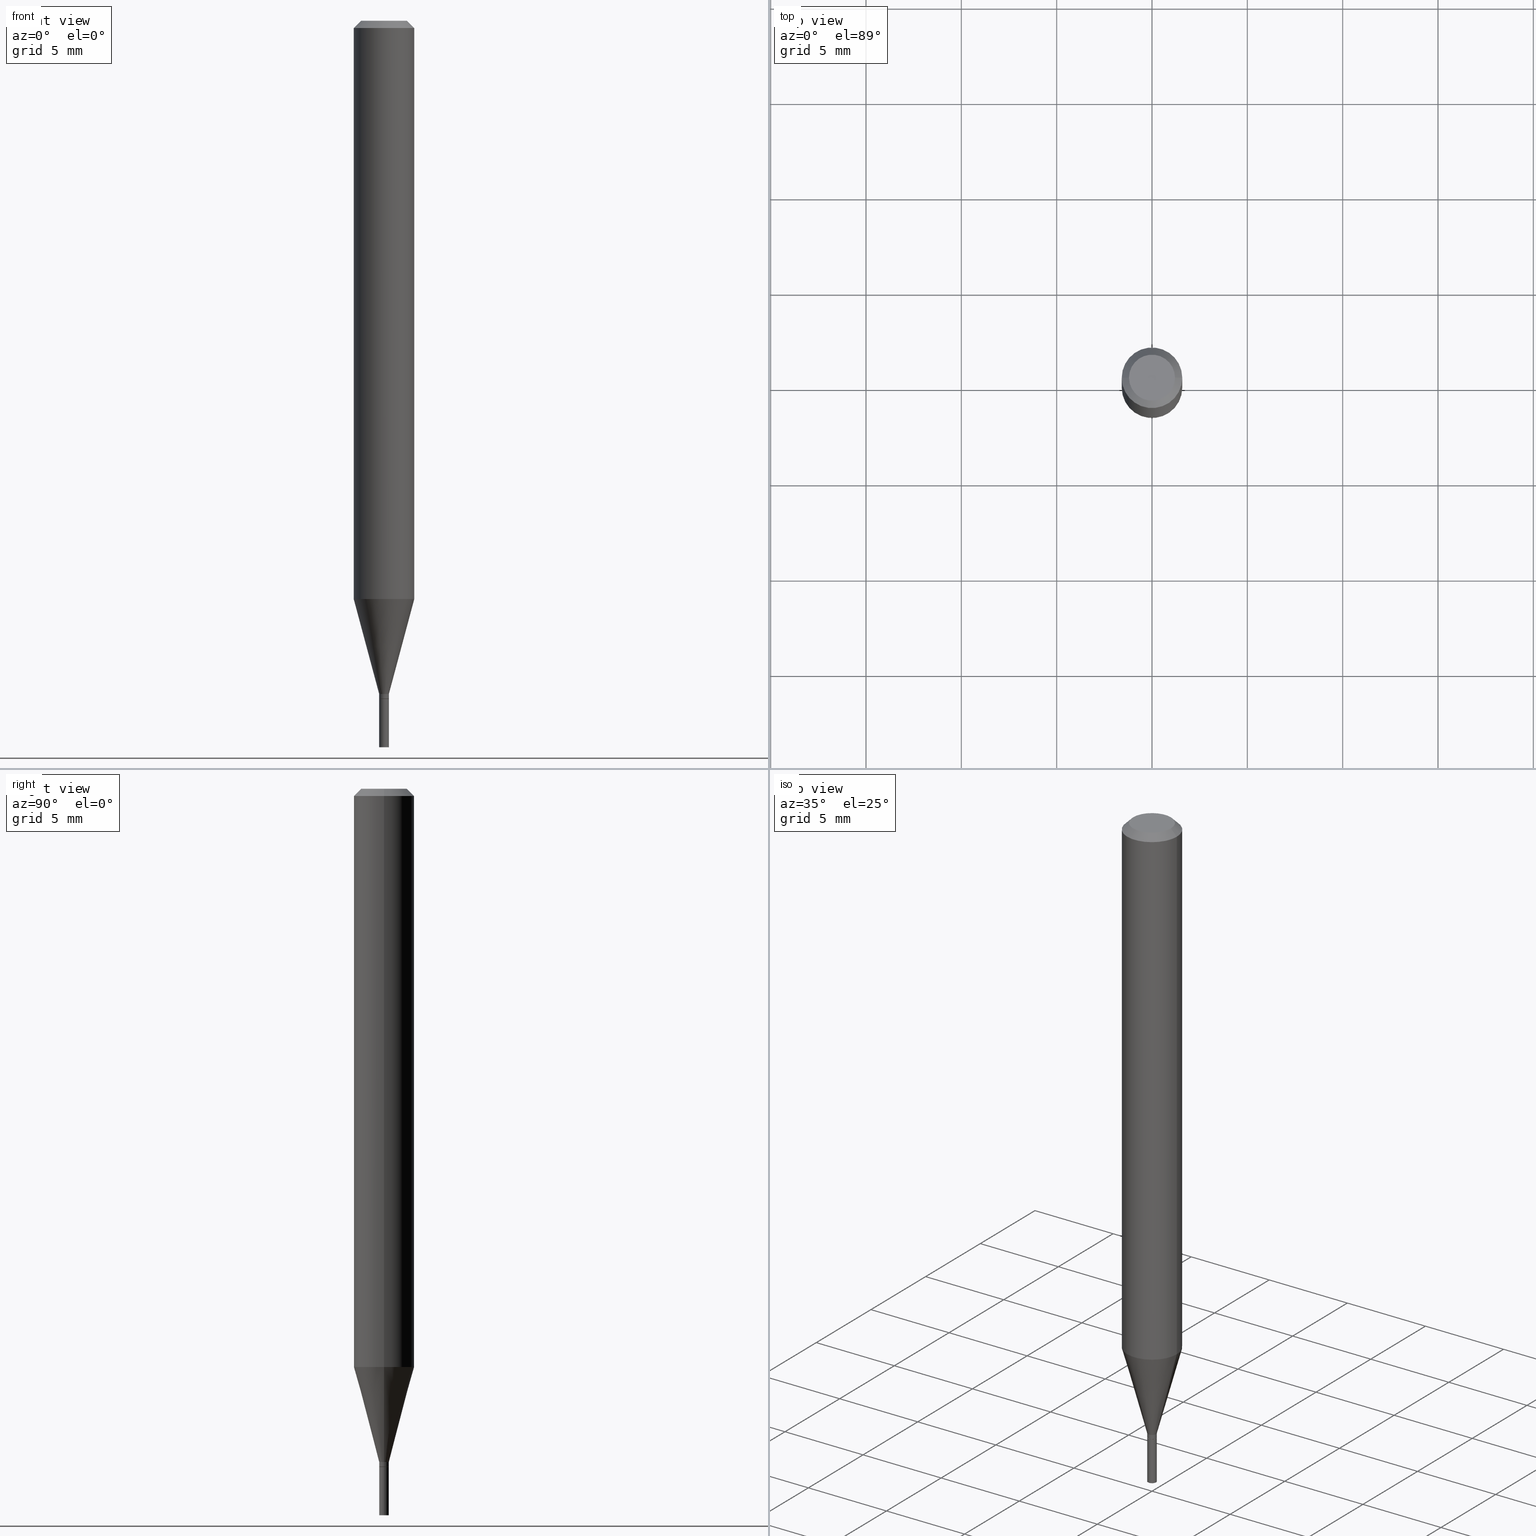
[diagram: canonical four-view strip — front | top / right | iso, engineering-drawing reading convention]
A machine part, canonical four-view strip (front | top / right | iso — engineering-drawing reading convention). The complete STEP part file that produces these views, byte-faithful:
ISO-10303-21;
HEADER;
FILE_DESCRIPTION (( 'STEP AP203' ),
    '1' );
FILE_NAME ('04184.STEP',
    '2024-03-14T17:13:48',
    ( '' ),
    ( '' ),
    'SwSTEP 2.0',
    'SolidWorks 2023',
    '' );
FILE_SCHEMA (( 'CONFIG_CONTROL_DESIGN' ));
ENDSEC;

DATA;
#1 = ORIENTED_EDGE ( 'NONE', *, *, #138, .F. ) ;
#2 = CARTESIAN_POINT ( 'NONE',  ( 1.799783034236790585E-44, -2.569613180961801607E-30, -7.359664656873714366E-16 ) ) ;
#3 = CONICAL_SURFACE ( 'NONE', #363, 0.06250000000000000000, 0.7853981633974729260 ) ;
#4 = CC_DESIGN_APPROVAL ( #275, ( #165 ) ) ;
#5 = ORIENTED_EDGE ( 'NONE', *, *, #454, .T. ) ;
#6 = DATE_AND_TIME ( #153, #202 ) ;
#7 = CARTESIAN_POINT ( 'NONE',  ( -0.06250000000000000000, 4.440892098500626162E-16, -3.074334431409316114E-30 ) ) ;
#8 = EDGE_CURVE ( 'NONE', #449, #362, #265, .T. ) ;
#9 = PERSON_AND_ORGANIZATION ( #248, #262 ) ;
#10 = LINE ( 'NONE', #443, #328 ) ;
#11 = CARTESIAN_POINT ( 'NONE',  ( 0.06250000000000000000, -4.811533449433679005E-16, -0.01499999999999999944 ) ) ;
#12 = CIRCLE ( 'NONE', #156, 0.01000000000000000021 ) ;
#13 = CARTESIAN_POINT ( 'NONE',  ( 3.423656328659191123E-29, -4.888073874380404052E-15, -1.400000000000000133 ) ) ;
#14 = CC_DESIGN_DATE_AND_TIME_ASSIGNMENT ( #251, #99, ( #260 ) ) ;
#15 = DIRECTION ( 'NONE',  ( 1.000000000000000000, -6.982962677686235945E-15, 0.000000000000000000 ) ) ;
#16 = APPLICATION_PROTOCOL_DEFINITION ( 'international standard', 'config_control_design', 1994, #89 ) ;
#17 = DIRECTION ( 'NONE',  ( -2.445468806185136877E-29, 3.491481338843145188E-15, 1.000000000000000000 ) ) ;
#18 = EDGE_LOOP ( 'NONE', ( #455, #130, #423, #182 ) ) ;
#19 = CONICAL_SURFACE ( 'NONE', #28, 0.009999999999999918676, 0.2617993877991495744 ) ;
#20 = DIRECTION ( 'NONE',  ( 1.000000000000000000, -6.982962677686265922E-15, 4.876176775795935793E-29 ) ) ;
#21 = CYLINDRICAL_SURFACE ( 'NONE', #244, 0.01000000000000000021 ) ;
#22 = ADVANCED_FACE ( 'NONE', ( #416 ), #375, .T. ) ;
#23 = ORIENTED_EDGE ( 'NONE', *, *, #422, .T. ) ;
#24 = CARTESIAN_POINT ( 'NONE',  ( 3.668203209277704895E-29, -5.237222008264718177E-15, -1.500000000000000222 ) ) ;
#25 = DIRECTION ( 'NONE',  ( -1.000000000000000000, 6.982962677686266711E-15, 0.000000000000000000 ) ) ;
#26 = ORIENTED_EDGE ( 'NONE', *, *, #218, .T. ) ;
#27 = ADVANCED_BREP_SHAPE_REPRESENTATION ( '04184', ( #329, #174, #61 ), #107 ) ;
#28 = AXIS2_PLACEMENT_3D ( 'NONE', #396, #71, #212 ) ;
#29 = LOCAL_TIME ( 13, 13, 48.00000000000000000, #113 ) ;
#30 = CARTESIAN_POINT ( 'NONE',  ( 0.06250000000000000000, -4.364351673553916694E-16, 3.047610484872459871E-30 ) ) ;
#31 = DIRECTION ( 'NONE',  ( 1.000000000000000000, -6.982962677686267499E-15, 4.852736867747366768E-29 ) ) ;
#32 = VECTOR ( 'NONE', #129, 39.37007874015748854 ) ;
#33 = DIRECTION ( 'NONE',  ( -2.445468806185136597E-29, 3.491481338843145583E-15, 1.000000000000000000 ) ) ;
#34 = EDGE_CURVE ( 'NONE', #190, #246, #123, .T. ) ;
#35 = ORIENTED_EDGE ( 'NONE', *, *, #170, .F. ) ;
#36 = DIRECTION ( 'NONE',  ( -2.445468806185136877E-29, 3.491481338843145188E-15, 1.000000000000000000 ) ) ;
#37 = ORIENTED_EDGE ( 'NONE', *, *, #388, .T. ) ;
#38 = EDGE_CURVE ( 'NONE', #112, #348, #208, .T. ) ;
#39 = CARTESIAN_POINT ( 'NONE',  ( 3.422433594256099443E-29, -4.886328133710982549E-15, -1.399500000000000188 ) ) ;
#40 = VECTOR ( 'NONE', #429, 39.37007874015748143 ) ;
#41 = PLANE ( 'NONE',  #234 ) ;
#42 = EDGE_LOOP ( 'NONE', ( #294, #410, #53, #44 ) ) ;
#43 = CARTESIAN_POINT ( 'NONE',  ( 2.920054414364433341E-29, -4.169063809104307655E-15, -1.194067332602633869 ) ) ;
#44 = ORIENTED_EDGE ( 'NONE', *, *, #38, .F. ) ;
#45 = APPLICATION_CONTEXT ( 'configuration controlled 3d designs of mechanical parts and assemblies' ) ;
#46 = LINE ( 'NONE', #7, #397 ) ;
#47 = ORIENTED_EDGE ( 'NONE', *, *, #141, .F. ) ;
#48 = EDGE_CURVE ( 'NONE', #362, #232, #238, .T. ) ;
#49 =( NAMED_UNIT ( * ) SI_UNIT ( $, .STERADIAN. ) SOLID_ANGLE_UNIT ( ) );
#50 = CALENDAR_DATE ( 2024, 14, 3 ) ;
#51 = FACE_OUTER_BOUND ( 'NONE', #116, .T. ) ;
#52 = LINE ( 'NONE', #338, #178 ) ;
#53 = ORIENTED_EDGE ( 'NONE', *, *, #170, .T. ) ;
#54 = ORIENTED_EDGE ( 'NONE', *, *, #101, .F. ) ;
#55 = DIRECTION ( 'NONE',  ( 2.438088387897960049E-29, -3.491481338843145188E-15, -1.000000000000000000 ) ) ;
#56 = FACE_OUTER_BOUND ( 'NONE', #134, .T. ) ;
#57 = ADVANCED_FACE ( 'NONE', ( #51 ), #21, .T. ) ;
#58 = ORIENTED_EDGE ( 'NONE', *, *, #306, .F. ) ;
#59 = EDGE_LOOP ( 'NONE', ( #73, #228 ) ) ;
#60 = VECTOR ( 'NONE', #436, 39.37007874015748143 ) ;
#61 = AXIS2_PLACEMENT_3D ( 'NONE', #299, #122, #261 ) ;
#62 = PLANE ( 'NONE',  #442 ) ;
#63 = CARTESIAN_POINT ( 'NONE',  ( 3.668203209277704895E-29, -5.237222008264718177E-15, -1.500000000000000222 ) ) ;
#64 = ORIENTED_EDGE ( 'NONE', *, *, #388, .F. ) ;
#65 = CC_DESIGN_PERSON_AND_ORGANIZATION_ASSIGNMENT ( #9, #276, ( #165 ) ) ;
#66 = PERSON_AND_ORGANIZATION_ROLE ( 'creator' ) ;
#67 = PERSON_AND_ORGANIZATION ( #248, #262 ) ;
#68 = CARTESIAN_POINT ( 'NONE',  ( 0.000000000000000000, 0.000000000000000000, 0.000000000000000000 ) ) ;
#69 = ADVANCED_FACE ( 'NONE', ( #418 ), #148, .T. ) ;
#70 = AXIS2_PLACEMENT_3D ( 'NONE', #2, #222, #81 ) ;
#71 = DIRECTION ( 'NONE',  ( -2.445468806185136597E-29, 3.491481338843145583E-15, 1.000000000000000000 ) ) ;
#72 = CARTESIAN_POINT ( 'NONE',  ( -0.01000000000000000021, 7.105427357601002007E-17, -4.918935090254906272E-31 ) ) ;
#73 = ORIENTED_EDGE ( 'NONE', *, *, #48, .T. ) ;
#74 = PERSON_AND_ORGANIZATION ( #248, #262 ) ;
#75 = CARTESIAN_POINT ( 'NONE',  ( 0.009999999999999918676, -4.922988687768835701E-15, -1.390000000000000124 ) ) ;
#76 = PRODUCT_DEFINITION_SHAPE ( 'NONE', 'NONE',  #260 ) ;
#77 = DIRECTION ( 'NONE',  ( -2.445468806185136597E-29, 3.491481338843145583E-15, 1.000000000000000000 ) ) ;
#78 = CIRCLE ( 'NONE', #462, 0.06250000000000000000 ) ;
#79 = CIRCLE ( 'NONE', #420, 0.01000000000000000021 ) ;
#80 = APPROVAL_ROLE ( '' ) ;
#81 = DIRECTION ( 'NONE',  ( 1.000000000000000000, -6.982962677686267499E-15, 4.852736867747366768E-29 ) ) ;
#82 = CARTESIAN_POINT ( 'NONE',  ( -0.06250000000000000000, 3.840629472727444916E-16, -0.01499999999999999944 ) ) ;
#83 = ORIENTED_EDGE ( 'NONE', *, *, #84, .T. ) ;
#84 = EDGE_CURVE ( 'NONE', #308, #449, #12, .T. ) ;
#85 = VECTOR ( 'NONE', #445, 39.37007874015748143 ) ;
#86 = ORIENTED_EDGE ( 'NONE', *, *, #213, .F. ) ;
#87 = MECHANICAL_CONTEXT ( 'NONE', #45, 'mechanical' ) ;
#88 = ORIENTED_EDGE ( 'NONE', *, *, #360, .F. ) ;
#89 = APPLICATION_CONTEXT ( 'configuration controlled 3d designs of mechanical parts and assemblies' ) ;
#90 = ADVANCED_FACE ( 'NONE', ( #159 ), #3, .T. ) ;
#91 = DIRECTION ( 'NONE',  ( -1.000000000000000000, 6.982962677686265922E-15, -4.876176775795935793E-29 ) ) ;
#92 = CARTESIAN_POINT ( 'NONE',  ( 0.000000000000000000, 0.000000000000000000, 0.000000000000000000 ) ) ;
#93 = CYLINDRICAL_SURFACE ( 'NONE', #193, 0.009999999999999920411 ) ;
#94 = CARTESIAN_POINT ( 'NONE',  ( 3.423656328659191123E-29, -4.888073874380404052E-15, -1.400000000000000133 ) ) ;
#95 = CLOSED_SHELL ( 'NONE', ( #154, #164, #90, #415, #235, #117, #209, #318, #354, #183, #69, #22 ) ) ;
#96 = ORIENTED_EDGE ( 'NONE', *, *, #213, .T. ) ;
#97 = DIRECTION ( 'NONE',  ( -2.445468806185136597E-29, 3.491481338843145583E-15, 1.000000000000000000 ) ) ;
#98 = AXIS2_PLACEMENT_3D ( 'NONE', #353, #283, #431 ) ;
#99 = DATE_TIME_ROLE ( 'creation_date' ) ;
#100 = CARTESIAN_POINT ( 'NONE',  ( 0.009499999999999999764, -4.954412019818423555E-15, -1.400000000000000133 ) ) ;
#101 = EDGE_CURVE ( 'NONE', #348, #112, #381, .T. ) ;
#102 = COORDINATED_UNIVERSAL_TIME_OFFSET ( 5, 0, .BEHIND. ) ;
#103 = CYLINDRICAL_SURFACE ( 'NONE', #162, 0.06250000000000000000 ) ;
#104 = DESIGN_CONTEXT ( 'detailed design', #89, 'design' ) ;
#105 = DIRECTION ( 'NONE',  ( 1.000000000000000000, -6.982962677686266711E-15, 4.876176775795936353E-29 ) ) ;
#106 = AXIS2_PLACEMENT_3D ( 'NONE', #108, #463, #316 ) ;
#107 =( GEOMETRIC_REPRESENTATION_CONTEXT ( 3 ) GLOBAL_UNCERTAINTY_ASSIGNED_CONTEXT ( ( #334 ) ) GLOBAL_UNIT_ASSIGNED_CONTEXT ( ( #137, #269, #49 ) ) REPRESENTATION_CONTEXT ( 'NONE', 'WORKASPACE' ) );
#108 = CARTESIAN_POINT ( 'NONE',  ( 3.399201640597340139E-29, -4.853159060991973192E-15, -1.390000000000000124 ) ) ;
#109 = CARTESIAN_POINT ( 'NONE',  ( 3.668203209277705088E-31, -5.237222008264718399E-17, -0.01499999999999999944 ) ) ;
#110 = PERSON_AND_ORGANIZATION ( #248, #262 ) ;
#111 = DIRECTION ( 'NONE',  ( -2.445468806185136597E-29, 3.491481338843145583E-15, 1.000000000000000000 ) ) ;
#112 = VERTEX_POINT ( 'NONE', #357 ) ;
#113 = COORDINATED_UNIVERSAL_TIME_OFFSET ( 5, 0, .BEHIND. ) ;
#114 = CIRCLE ( 'NONE', #358, 0.009499999999999999764 ) ;
#115 = AXIS2_PLACEMENT_3D ( 'NONE', #386, #231, #346 ) ;
#116 = EDGE_LOOP ( 'NONE', ( #23, #263, #400, #192 ) ) ;
#117 = ADVANCED_FACE ( 'NONE', ( #387 ), #171, .T. ) ;
#118 = CARTESIAN_POINT ( 'NONE',  ( 3.399201640597340139E-29, -4.853159060991973192E-15, -1.390000000000000124 ) ) ;
#119 = DIRECTION ( 'NONE',  ( -2.445468806185136597E-29, 3.491481338843145583E-15, 1.000000000000000000 ) ) ;
#120 = LINE ( 'NONE', #256, #85 ) ;
#121 = DIRECTION ( 'NONE',  ( 1.000000000000000000, -6.982962677686235945E-15, 0.000000000000000000 ) ) ;
#122 = DIRECTION ( 'NONE',  ( 0.000000000000000000, 0.000000000000000000, 1.000000000000000000 ) ) ;
#123 = CIRCLE ( 'NONE', #351, 0.009499999999999999764 ) ;
#124 = ORIENTED_EDGE ( 'NONE', *, *, #34, .F. ) ;
#125 = PRODUCT_DEFINITION_FORMATION_WITH_SPECIFIED_SOURCE ( 'ANY', '', #189, .NOT_KNOWN. ) ;
#126 = APPROVAL ( #352, 'UNSPECIFIED' ) ;
#127 = ORIENTED_EDGE ( 'NONE', *, *, #282, .F. ) ;
#128 = CARTESIAN_POINT ( 'NONE',  ( -0.009999999999999923880, -4.815273860134973256E-15, -1.399500000000000188 ) ) ;
#129 = DIRECTION ( 'NONE',  ( -0.7071067811865647812, 7.493145998870415691E-15, 0.7071067811865301422 ) ) ;
#130 = ORIENTED_EDGE ( 'NONE', *, *, #266, .T. ) ;
#131 = CARTESIAN_POINT ( 'NONE',  ( 0.009499999999999999764, -4.954412019818423555E-15, -1.400000000000000133 ) ) ;
#132 = DIRECTION ( 'NONE',  ( 1.000000000000000000, -6.982962677686281699E-15, 0.000000000000000000 ) ) ;
#133 = LENGTH_MEASURE_WITH_UNIT ( LENGTH_MEASURE( 0.02539999999999999897 ), #374 );
#134 = EDGE_LOOP ( 'NONE', ( #37, #413, #456, #1 ) ) ;
#135 = VECTOR ( 'NONE', #402, 39.37007874015748143 ) ;
#136 = VERTEX_POINT ( 'NONE', #370 ) ;
#137 =( CONVERSION_BASED_UNIT ( 'INCH', #133 ) LENGTH_UNIT ( ) NAMED_UNIT ( #211 ) );
#138 = EDGE_CURVE ( 'NONE', #405, #359, #52, .T. ) ;
#139 = ORIENTED_EDGE ( 'NONE', *, *, #360, .T. ) ;
#140 = CALENDAR_DATE ( 2024, 14, 3 ) ;
#141 = EDGE_CURVE ( 'NONE', #246, #451, #343, .T. ) ;
#142 = CIRCLE ( 'NONE', #391, 0.009999999999999918676 ) ;
#143 = COORDINATED_UNIVERSAL_TIME_OFFSET ( 5, 0, .BEHIND. ) ;
#144 = CARTESIAN_POINT ( 'NONE',  ( 3.423656328659191123E-29, -4.888073874380404052E-15, -1.400000000000000133 ) ) ;
#145 = CARTESIAN_POINT ( 'NONE',  ( -0.01000000000000000021, -4.991593667746550638E-15, -1.400000000000000133 ) ) ;
#146 = CARTESIAN_POINT ( 'NONE',  ( -0.009999999999999918676, -4.253539693335104469E-15, -1.390000000000000124 ) ) ;
#147 = EDGE_LOOP ( 'NONE', ( #86, #345, #298, #88 ) ) ;
#148 = CONICAL_SURFACE ( 'NONE', #457, 0.009499999999999999764, 0.7853981633974728149 ) ;
#149 = CARTESIAN_POINT ( 'NONE',  ( -0.01000000000000000021, -4.991593667746550638E-15, -1.500000000000000222 ) ) ;
#150 = CC_DESIGN_PERSON_AND_ORGANIZATION_ASSIGNMENT ( #74, #216, ( #125 ) ) ;
#151 = ORIENTED_EDGE ( 'NONE', *, *, #422, .F. ) ;
#152 = ORIENTED_EDGE ( 'NONE', *, *, #34, .T. ) ;
#153 = CALENDAR_DATE ( 2024, 14, 3 ) ;
#154 = ADVANCED_FACE ( 'NONE', ( #56 ), #93, .T. ) ;
#155 = VECTOR ( 'NONE', #371, 39.37007874015748143 ) ;
#156 = AXIS2_PLACEMENT_3D ( 'NONE', #63, #336, #15 ) ;
#157 = CARTESIAN_POINT ( 'NONE',  ( 0.000000000000000000, 0.000000000000000000, 0.000000000000000000 ) ) ;
#158 = ORIENTED_EDGE ( 'NONE', *, *, #401, .T. ) ;
#159 = FACE_OUTER_BOUND ( 'NONE', #147, .T. ) ;
#160 = CARTESIAN_POINT ( 'NONE',  ( 3.422433594256099443E-29, -4.886328133710982549E-15, -1.399500000000000188 ) ) ;
#161 = CARTESIAN_POINT ( 'NONE',  ( -0.009499999999999999764, -4.820572314483194080E-15, -1.400000000000000133 ) ) ;
#162 = AXIS2_PLACEMENT_3D ( 'NONE', #68, #461, #245 ) ;
#163 = ORIENTED_EDGE ( 'NONE', *, *, #206, .T. ) ;
#164 = ADVANCED_FACE ( 'NONE', ( #319 ), #419, .T. ) ;
#165 = SECURITY_CLASSIFICATION ( '', '', #325 ) ;
#166 = DIRECTION ( 'NONE',  ( -2.445468806185136597E-29, 3.491481338843145583E-15, 1.000000000000000000 ) ) ;
#167 = VERTEX_POINT ( 'NONE', #146 ) ;
#168 = ORIENTED_EDGE ( 'NONE', *, *, #206, .F. ) ;
#169 = ORIENTED_EDGE ( 'NONE', *, *, #330, .T. ) ;
#170 = EDGE_CURVE ( 'NONE', #225, #348, #242, .T. ) ;
#171 = CONICAL_SURFACE ( 'NONE', #302, 0.009999999999999918676, 0.2617993877991495744 ) ;
#172 = LOCAL_TIME ( 13, 13, 48.00000000000000000, #290 ) ;
#173 = DATE_AND_TIME ( #350, #172 ) ;
#174 = MANIFOLD_SOLID_BREP ( 'Body-Move/Copy2[2]', #95 ) ;
#175 = DIRECTION ( 'NONE',  ( -2.445468806185136597E-29, 3.491481338843145583E-15, 1.000000000000000000 ) ) ;
#176 = APPROVAL_ROLE ( '' ) ;
#177 = PLANE ( 'NONE',  #98 ) ;
#178 = VECTOR ( 'NONE', #17, 39.37007874015748143 ) ;
#179 = APPROVAL_PERSON_ORGANIZATION ( #274, #126, #424 ) ;
#180 = CARTESIAN_POINT ( 'NONE',  ( 0.000000000000000000, 0.000000000000000000, 0.000000000000000000 ) ) ;
#181 = CARTESIAN_POINT ( 'NONE',  ( 0.06250000000000001388, -4.605498976459700114E-15, -1.194067332602633869 ) ) ;
#182 = ORIENTED_EDGE ( 'NONE', *, *, #433, .F. ) ;
#183 = ADVANCED_FACE ( 'NONE', ( #356 ), #177, .F. ) ;
#184 = CARTESIAN_POINT ( 'NONE',  ( -0.009499999999999999764, -4.817923087309084457E-15, -1.400000000000000133 ) ) ;
#185 = EDGE_LOOP ( 'NONE', ( #459, #83, #437, #230 ) ) ;
#186 = DATE_AND_TIME ( #210, #412 ) ;
#187 = ORIENTED_EDGE ( 'NONE', *, *, #466, .F. ) ;
#188 = DIRECTION ( 'NONE',  ( 2.438088387897960049E-29, -3.491481338843145188E-15, -1.000000000000000000 ) ) ;
#189 = PRODUCT ( '04184', '04184', '', ( #87 ) ) ;
#190 = VERTEX_POINT ( 'NONE', #100 ) ;
#191 = EDGE_CURVE ( 'NONE', #232, #362, #432, .T. ) ;
#192 = ORIENTED_EDGE ( 'NONE', *, *, #8, .F. ) ;
#193 = AXIS2_PLACEMENT_3D ( 'NONE', #180, #465, #105 ) ;
#194 = CARTESIAN_POINT ( 'NONE',  ( 3.423656328659191123E-29, -4.888073874380404052E-15, -1.400000000000000133 ) ) ;
#195 = CARTESIAN_POINT ( 'NONE',  ( 3.399201640597340139E-29, -4.853159060991973192E-15, -1.390000000000000124 ) ) ;
#196 = SHAPE_DEFINITION_REPRESENTATION ( #76, #27 ) ;
#197 = DIRECTION ( 'NONE',  ( 1.000000000000000000, -6.982962677686281699E-15, 0.000000000000000000 ) ) ;
#198 = PERSON_AND_ORGANIZATION ( #248, #262 ) ;
#199 = EDGE_LOOP ( 'NONE', ( #203, #58, #139, #284 ) ) ;
#200 = AXIS2_PLACEMENT_3D ( 'NONE', #109, #286, #367 ) ;
#201 = DIRECTION ( 'NONE',  ( -2.445468806185136597E-29, 3.491481338843145583E-15, 1.000000000000000000 ) ) ;
#202 = LOCAL_TIME ( 13, 13, 48.00000000000000000, #102 ) ;
#203 = ORIENTED_EDGE ( 'NONE', *, *, #368, .F. ) ;
#204 = DIRECTION ( 'NONE',  ( 1.000000000000000000, -6.982962677686289588E-15, 0.000000000000000000 ) ) ;
#205 = CARTESIAN_POINT ( 'NONE',  ( 3.668203209277705088E-31, -5.237222008264718399E-17, -0.01499999999999999944 ) ) ;
#206 = EDGE_CURVE ( 'NONE', #167, #359, #270, .T. ) ;
#207 = VERTEX_POINT ( 'NONE', #241 ) ;
#208 = CIRCLE ( 'NONE', #285, 0.06250000000000000000 ) ;
#209 = ADVANCED_FACE ( 'NONE', ( #240 ), #103, .T. ) ;
#210 = CALENDAR_DATE ( 2024, 14, 3 ) ;
#211 = DIMENSIONAL_EXPONENTS ( 1.000000000000000000, 0.000000000000000000, 0.000000000000000000, 0.000000000000000000, 0.000000000000000000, 0.000000000000000000, 0.000000000000000000 ) ;
#212 = DIRECTION ( 'NONE',  ( 1.000000000000000000, -6.982962677686292743E-15, 0.000000000000000000 ) ) ;
#213 = EDGE_CURVE ( 'NONE', #136, #207, #427, .T. ) ;
#214 = CARTESIAN_POINT ( 'NONE',  ( 3.423656328659191123E-29, -4.888073874380404052E-15, -1.400000000000000133 ) ) ;
#215 = CARTESIAN_POINT ( 'NONE',  ( 0.01000000000000000021, -4.957903501157266562E-15, -1.400000000000000133 ) ) ;
#216 = PERSON_AND_ORGANIZATION_ROLE ( 'design_supplier' ) ;
#217 = APPROVAL_PERSON_ORGANIZATION ( #407, #275, #80 ) ;
#218 = EDGE_CURVE ( 'NONE', #246, #190, #114, .T. ) ;
#219 = CARTESIAN_POINT ( 'NONE',  ( 2.920054414364433341E-29, -4.169063809104307655E-15, -1.194067332602633869 ) ) ;
#220 = APPROVAL_DATE_TIME ( #435, #275 ) ;
#221 = ORIENTED_EDGE ( 'NONE', *, *, #218, .F. ) ;
#222 = DIRECTION ( 'NONE',  ( -2.445468806185136597E-29, 3.491481338843145583E-15, 1.000000000000000000 ) ) ;
#223 = EDGE_LOOP ( 'NONE', ( #169, #158, #54, #35 ) ) ;
#224 = DIRECTION ( 'NONE',  ( -2.445468806185136597E-29, 3.491481338843145583E-15, 1.000000000000000000 ) ) ;
#225 = VERTEX_POINT ( 'NONE', #181 ) ;
#226 = VECTOR ( 'NONE', #36, 39.37007874015748143 ) ;
#227 = AXIS2_PLACEMENT_3D ( 'NONE', #303, #55, #91 ) ;
#228 = ORIENTED_EDGE ( 'NONE', *, *, #191, .T. ) ;
#229 = FACE_OUTER_BOUND ( 'NONE', #59, .T. ) ;
#230 = ORIENTED_EDGE ( 'NONE', *, *, #191, .F. ) ;
#231 = DIRECTION ( 'NONE',  ( -2.445468806185136597E-29, 3.491481338843145583E-15, 1.000000000000000000 ) ) ;
#232 = VERTEX_POINT ( 'NONE', #145 ) ;
#233 = CARTESIAN_POINT ( 'NONE',  ( 0.009999999999999918676, -4.922988687768835701E-15, -1.390000000000000124 ) ) ;
#234 = AXIS2_PLACEMENT_3D ( 'NONE', #409, #188, #326 ) ;
#235 = ADVANCED_FACE ( 'NONE', ( #430 ), #19, .T. ) ;
#236 = DIRECTION ( 'NONE',  ( -2.445468806185136597E-29, 3.491481338843145583E-15, 1.000000000000000000 ) ) ;
#237 = CC_DESIGN_SECURITY_CLASSIFICATION ( #165, ( #125 ) ) ;
#238 = CIRCLE ( 'NONE', #312, 0.01000000000000000021 ) ;
#239 = CC_DESIGN_PERSON_AND_ORGANIZATION_ASSIGNMENT ( #198, #337, ( #189 ) ) ;
#240 = FACE_OUTER_BOUND ( 'NONE', #42, .T. ) ;
#241 = CARTESIAN_POINT ( 'NONE',  ( -0.04749999999999999362, 3.578768372314198180E-16, -7.359664656873739018E-16 ) ) ;
#242 = LINE ( 'NONE', #30, #40 ) ;
#243 = EDGE_CURVE ( 'NONE', #308, #232, #399, .T. ) ;
#244 = AXIS2_PLACEMENT_3D ( 'NONE', #300, #453, #268 ) ;
#245 = DIRECTION ( 'NONE',  ( 1.000000000000000000, -6.982962677686266711E-15, 4.876176775795935793E-29 ) ) ;
#246 = VERTEX_POINT ( 'NONE', #184 ) ;
#247 = PERSON_AND_ORGANIZATION ( #248, #262 ) ;
#248 = PERSON ( 'UNSPECIFIED', 'UNSPECIFIED', 'UNSPECIFIED', ('UNSPECIFIED'), ('UNSPECIFIED'), ('UNSPECIFIED') ) ;
#249 = LINE ( 'NONE', #82, #135 ) ;
#250 = EDGE_LOOP ( 'NONE', ( #444, #163, #297, #366 ) ) ;
#251 = DATE_AND_TIME ( #140, #331 ) ;
#252 = APPROVAL ( #322, 'UNSPECIFIED' ) ;
#253 = DIRECTION ( 'NONE',  ( -2.445468806185136597E-29, 3.491481338843145583E-15, 1.000000000000000000 ) ) ;
#254 = APPROVAL_STATUS ( 'not_yet_approved' ) ;
#255 = CIRCLE ( 'NONE', #440, 0.06250000000000000000 ) ;
#256 = CARTESIAN_POINT ( 'NONE',  ( -0.009999999999999920411, 7.105427357600945307E-17, -4.918935090254867737E-31 ) ) ;
#257 = ORIENTED_EDGE ( 'NONE', *, *, #138, .T. ) ;
#258 = DIRECTION ( 'NONE',  ( 1.000000000000000000, -6.982962677686270655E-15, 0.000000000000000000 ) ) ;
#259 = EDGE_LOOP ( 'NONE', ( #151, #287 ) ) ;
#260 = PRODUCT_DEFINITION ( 'UNKNOWN', '', #125, #104 ) ;
#261 = DIRECTION ( 'NONE',  ( 1.000000000000000000, 0.000000000000000000, 0.000000000000000000 ) ) ;
#262 = ORGANIZATION ( 'UNSPECIFIED', 'UNSPECIFIED', '' ) ;
#263 = ORIENTED_EDGE ( 'NONE', *, *, #243, .T. ) ;
#264 = LINE ( 'NONE', #233, #364 ) ;
#265 = LINE ( 'NONE', #340, #155 ) ;
#266 = EDGE_CURVE ( 'NONE', #167, #446, #10, .T. ) ;
#267 = DIRECTION ( 'NONE',  ( 0.7071067811865647812, -2.468850131082438104E-15, 0.7071067811865301422 ) ) ;
#268 = DIRECTION ( 'NONE',  ( 1.000000000000000000, -6.982962677686265922E-15, 4.876176775795935793E-29 ) ) ;
#269 =( NAMED_UNIT ( * ) PLANE_ANGLE_UNIT ( ) SI_UNIT ( $, .RADIAN. ) );
#270 = CIRCLE ( 'NONE', #106, 0.009999999999999918676 ) ;
#271 = CC_DESIGN_APPROVAL ( #252, ( #125 ) ) ;
#272 = CARTESIAN_POINT ( 'NONE',  ( 3.668203209277705088E-31, -5.237222008264718399E-17, -0.01499999999999999944 ) ) ;
#273 = DIRECTION ( 'NONE',  ( 0.2588190451025209060, 1.565188264969625123E-15, 0.9659258262890682012 ) ) ;
#274 = PERSON_AND_ORGANIZATION ( #248, #262 ) ;
#275 = APPROVAL ( #254, 'UNSPECIFIED' ) ;
#276 = PERSON_AND_ORGANIZATION_ROLE ( 'classification_officer' ) ;
#277 = CARTESIAN_POINT ( 'NONE',  ( 1.799783034236790585E-44, -2.569613180961801607E-30, -7.359664656873714366E-16 ) ) ;
#278 = DIRECTION ( 'NONE',  ( -2.445468806185136597E-29, 3.491481338843145583E-15, 1.000000000000000000 ) ) ;
#279 = AXIS2_PLACEMENT_3D ( 'NONE', #157, #77, #439 ) ;
#280 = COORDINATED_UNIVERSAL_TIME_OFFSET ( 5, 0, .BEHIND. ) ;
#281 = DIRECTION ( 'NONE',  ( 1.000000000000000000, -6.982962677686235945E-15, 0.000000000000000000 ) ) ;
#282 = EDGE_CURVE ( 'NONE', #451, #167, #120, .T. ) ;
#283 = DIRECTION ( 'NONE',  ( -2.438088387897960049E-29, 3.491481338843145188E-15, 1.000000000000000000 ) ) ;
#284 = ORIENTED_EDGE ( 'NONE', *, *, #38, .T. ) ;
#285 = AXIS2_PLACEMENT_3D ( 'NONE', #272, #385, #333 ) ;
#286 = DIRECTION ( 'NONE',  ( 2.445468806185136597E-29, -3.491481338843145583E-15, -1.000000000000000000 ) ) ;
#287 = ORIENTED_EDGE ( 'NONE', *, *, #84, .F. ) ;
#288 = ADVANCED_FACE ( 'NONE', ( #332 ), #291, .T. ) ;
#289 = DIRECTION ( 'NONE',  ( -2.445468806185136877E-29, 3.491481338843145188E-15, 1.000000000000000000 ) ) ;
#290 = COORDINATED_UNIVERSAL_TIME_OFFSET ( 5, 0, .BEHIND. ) ;
#291 = CYLINDRICAL_SURFACE ( 'NONE', #279, 0.01000000000000000021 ) ;
#292 = ORIENTED_EDGE ( 'NONE', *, *, #306, .T. ) ;
#293 = AXIS2_PLACEMENT_3D ( 'NONE', #39, #224, #369 ) ;
#294 = ORIENTED_EDGE ( 'NONE', *, *, #401, .F. ) ;
#295 = EDGE_CURVE ( 'NONE', #359, #167, #142, .T. ) ;
#296 = DIRECTION ( 'NONE',  ( -2.445468806185136597E-29, 3.491481338843145583E-15, 1.000000000000000000 ) ) ;
#297 = ORIENTED_EDGE ( 'NONE', *, *, #433, .T. ) ;
#298 = ORIENTED_EDGE ( 'NONE', *, *, #101, .T. ) ;
#299 = CARTESIAN_POINT ( 'NONE',  ( 0.000000000000000000, 0.000000000000000000, 0.000000000000000000 ) ) ;
#300 = CARTESIAN_POINT ( 'NONE',  ( 0.000000000000000000, 0.000000000000000000, 0.000000000000000000 ) ) ;
#301 = EDGE_LOOP ( 'NONE', ( #127, #5, #257, #168 ) ) ;
#302 = AXIS2_PLACEMENT_3D ( 'NONE', #195, #119, #379 ) ;
#303 = CARTESIAN_POINT ( 'NONE',  ( 6.982962677689689874E-17, 0.009999999999995111757, -1.400000000000000133 ) ) ;
#304 = VECTOR ( 'NONE', #267, 39.37007874015748854 ) ;
#305 = EDGE_LOOP ( 'NONE', ( #124, #221 ) ) ;
#306 = EDGE_CURVE ( 'NONE', #207, #136, #382, .T. ) ;
#307 = DIRECTION ( 'NONE',  ( 1.000000000000000000, -6.982962677686235945E-15, 0.000000000000000000 ) ) ;
#308 = VERTEX_POINT ( 'NONE', #149 ) ;
#309 = EDGE_LOOP ( 'NONE', ( #292, #96 ) ) ;
#310 = DIRECTION ( 'NONE',  ( -2.438088387897960049E-29, 3.491481338843145188E-15, 1.000000000000000000 ) ) ;
#311 = ORIENTED_EDGE ( 'NONE', *, *, #141, .T. ) ;
#312 = AXIS2_PLACEMENT_3D ( 'NONE', #13, #201, #121 ) ;
#313 = DATE_TIME_ROLE ( 'classification_date' ) ;
#314 = CC_DESIGN_PERSON_AND_ORGANIZATION_ASSIGNMENT ( #247, #315, ( #125 ) ) ;
#315 = PERSON_AND_ORGANIZATION_ROLE ( 'creator' ) ;
#316 = DIRECTION ( 'NONE',  ( 1.000000000000000000, -6.982962677686292743E-15, 0.000000000000000000 ) ) ;
#317 = CIRCLE ( 'NONE', #293, 0.009999999999999923880 ) ;
#318 = ADVANCED_FACE ( 'NONE', ( #323 ), #406, .T. ) ;
#319 = FACE_OUTER_BOUND ( 'NONE', #441, .T. ) ;
#320 = DIRECTION ( 'NONE',  ( -0.2588190451025209060, 5.211531920934547097E-15, 0.9659258262890682012 ) ) ;
#321 = AXIS2_PLACEMENT_3D ( 'NONE', #214, #175, #281 ) ;
#322 = APPROVAL_STATUS ( 'not_yet_approved' ) ;
#323 = FACE_OUTER_BOUND ( 'NONE', #199, .T. ) ;
#324 = PRODUCT_RELATED_PRODUCT_CATEGORY ( 'detail', '', ( #189 ) ) ;
#325 = SECURITY_CLASSIFICATION_LEVEL ( 'unclassified' ) ;
#326 = DIRECTION ( 'NONE',  ( -1.000000000000000000, 6.982962677686265922E-15, -4.876176775795935793E-29 ) ) ;
#327 = DIRECTION ( 'NONE',  ( 1.000000000000000000, -6.982962677686270655E-15, 0.000000000000000000 ) ) ;
#328 = VECTOR ( 'NONE', #320, 39.37007874015748143 ) ;
#329 = MANIFOLD_SOLID_BREP ( 'Body-Move/Copy2[1]', #355 ) ;
#330 = EDGE_CURVE ( 'NONE', #225, #446, #78, .T. ) ;
#331 = LOCAL_TIME ( 13, 13, 48.00000000000000000, #280 ) ;
#332 = FACE_OUTER_BOUND ( 'NONE', #185, .T. ) ;
#333 = DIRECTION ( 'NONE',  ( 1.000000000000000000, -6.982962677686266711E-15, 0.000000000000000000 ) ) ;
#334 = UNCERTAINTY_MEASURE_WITH_UNIT (LENGTH_MEASURE( 1.000000000000000082E-05 ), #137, 'distance_accuracy_value', 'NONE');
#335 = APPLICATION_PROTOCOL_DEFINITION ( 'international standard', 'config_control_design', 1994, #45 ) ;
#336 = DIRECTION ( 'NONE',  ( -2.445468806185136597E-29, 3.491481338843145583E-15, 1.000000000000000000 ) ) ;
#337 = PERSON_AND_ORGANIZATION_ROLE ( 'design_owner' ) ;
#338 = CARTESIAN_POINT ( 'NONE',  ( 0.009999999999999920411, -6.982962677686211490E-17, 4.876176775795897432E-31 ) ) ;
#339 = CC_DESIGN_PERSON_AND_ORGANIZATION_ASSIGNMENT ( #110, #66, ( #260 ) ) ;
#340 = CARTESIAN_POINT ( 'NONE',  ( 0.01000000000000000021, -6.982962677686265724E-17, 4.876176775795935968E-31 ) ) ;
#341 = AXIS2_PLACEMENT_3D ( 'NONE', #392, #393, #425 ) ;
#342 = FACE_OUTER_BOUND ( 'NONE', #259, .T. ) ;
#343 = LINE ( 'NONE', #161, #32 ) ;
#344 = ORIENTED_EDGE ( 'NONE', *, *, #454, .F. ) ;
#345 = ORIENTED_EDGE ( 'NONE', *, *, #368, .T. ) ;
#346 = DIRECTION ( 'NONE',  ( 1.000000000000000000, -6.982962677686266711E-15, 4.876176775795935793E-29 ) ) ;
#347 = DIRECTION ( 'NONE',  ( 1.000000000000000000, -6.982962677686266711E-15, 4.876176775795936353E-29 ) ) ;
#348 = VERTEX_POINT ( 'NONE', #404 ) ;
#349 = EDGE_CURVE ( 'NONE', #446, #225, #255, .T. ) ;
#350 = CALENDAR_DATE ( 2024, 14, 3 ) ;
#351 = AXIS2_PLACEMENT_3D ( 'NONE', #194, #380, #132 ) ;
#352 = APPROVAL_STATUS ( 'not_yet_approved' ) ;
#353 = CARTESIAN_POINT ( 'NONE',  ( 3.423656328659191123E-29, -4.888073874380404052E-15, -1.400000000000000133 ) ) ;
#354 = ADVANCED_FACE ( 'NONE', ( #365 ), #41, .F. ) ;
#355 = CLOSED_SHELL ( 'NONE', ( #57, #438, #288, #426 ) ) ;
#356 = FACE_OUTER_BOUND ( 'NONE', #305, .T. ) ;
#357 = CARTESIAN_POINT ( 'NONE',  ( -0.06250000000000000000, -1.666628804743414948E-15, -0.01499999999999999944 ) ) ;
#358 = AXIS2_PLACEMENT_3D ( 'NONE', #144, #33, #394 ) ;
#359 = VERTEX_POINT ( 'NONE', #75 ) ;
#360 = EDGE_CURVE ( 'NONE', #207, #112, #249, .T. ) ;
#361 = LINE ( 'NONE', #11, #60 ) ;
#362 = VERTEX_POINT ( 'NONE', #215 ) ;
#363 = AXIS2_PLACEMENT_3D ( 'NONE', #205, #447, #25 ) ;
#364 = VECTOR ( 'NONE', #273, 39.37007874015748143 ) ;
#365 = FACE_OUTER_BOUND ( 'NONE', #309, .T. ) ;
#366 = ORIENTED_EDGE ( 'NONE', *, *, #349, .F. ) ;
#367 = DIRECTION ( 'NONE',  ( -1.000000000000000000, 6.982962677686266711E-15, 0.000000000000000000 ) ) ;
#368 = EDGE_CURVE ( 'NONE', #136, #348, #361, .T. ) ;
#369 = DIRECTION ( 'NONE',  ( 1.000000000000000000, -6.982962677686289588E-15, 0.000000000000000000 ) ) ;
#370 = CARTESIAN_POINT ( 'NONE',  ( 0.04749999999999999362, -4.035134999187590949E-16, -7.359664656873688728E-16 ) ) ;
#371 = DIRECTION ( 'NONE',  ( -2.445468806185136877E-29, 3.491481338843145188E-15, 1.000000000000000000 ) ) ;
#372 = AXIS2_PLACEMENT_3D ( 'NONE', #277, #428, #31 ) ;
#373 = APPROVAL_PERSON_ORGANIZATION ( #67, #252, #176 ) ;
#374 =( LENGTH_UNIT ( ) NAMED_UNIT ( * ) SI_UNIT ( $, .METRE. ) );
#375 = CYLINDRICAL_SURFACE ( 'NONE', #395, 0.009999999999999920411 ) ;
#376 = CYLINDRICAL_SURFACE ( 'NONE', #115, 0.06250000000000000000 ) ;
#377 = DIRECTION ( 'NONE',  ( -2.445468806185136597E-29, 3.491481338843145583E-15, 1.000000000000000000 ) ) ;
#378 = CARTESIAN_POINT ( 'NONE',  ( 0.009999999999999923880, -4.956157760487845058E-15, -1.399500000000000188 ) ) ;
#379 = DIRECTION ( 'NONE',  ( 1.000000000000000000, -6.982962677686292743E-15, 0.000000000000000000 ) ) ;
#380 = DIRECTION ( 'NONE',  ( -2.445468806185136597E-29, 3.491481338843145583E-15, 1.000000000000000000 ) ) ;
#381 = CIRCLE ( 'NONE', #411, 0.06250000000000000000 ) ;
#382 = CIRCLE ( 'NONE', #70, 0.04749999999999999362 ) ;
#383 = FACE_OUTER_BOUND ( 'NONE', #223, .T. ) ;
#384 = CIRCLE ( 'NONE', #434, 0.009999999999999923880 ) ;
#385 = DIRECTION ( 'NONE',  ( -2.445468806185136597E-29, 3.491481338843145583E-15, 1.000000000000000000 ) ) ;
#386 = CARTESIAN_POINT ( 'NONE',  ( 0.000000000000000000, 0.000000000000000000, 0.000000000000000000 ) ) ;
#387 = FACE_OUTER_BOUND ( 'NONE', #250, .T. ) ;
#388 = EDGE_CURVE ( 'NONE', #405, #451, #317, .T. ) ;
#389 = ORIENTED_EDGE ( 'NONE', *, *, #466, .T. ) ;
#390 = APPROVAL_DATE_TIME ( #186, #126 ) ;
#391 = AXIS2_PLACEMENT_3D ( 'NONE', #118, #253, #408 ) ;
#392 = CARTESIAN_POINT ( 'NONE',  ( 3.423656328659191123E-29, -4.888073874380404052E-15, -1.400000000000000133 ) ) ;
#393 = DIRECTION ( 'NONE',  ( -2.445468806185136597E-29, 3.491481338843145583E-15, 1.000000000000000000 ) ) ;
#394 = DIRECTION ( 'NONE',  ( 1.000000000000000000, -6.982962677686281699E-15, 0.000000000000000000 ) ) ;
#395 = AXIS2_PLACEMENT_3D ( 'NONE', #92, #377, #347 ) ;
#396 = CARTESIAN_POINT ( 'NONE',  ( 3.399201640597340139E-29, -4.853159060991973192E-15, -1.390000000000000124 ) ) ;
#397 = VECTOR ( 'NONE', #289, 39.37007874015748143 ) ;
#398 = CC_DESIGN_APPROVAL ( #126, ( #260 ) ) ;
#399 = LINE ( 'NONE', #72, #226 ) ;
#400 = ORIENTED_EDGE ( 'NONE', *, *, #48, .F. ) ;
#401 = EDGE_CURVE ( 'NONE', #446, #112, #46, .T. ) ;
#402 = DIRECTION ( 'NONE',  ( -0.7071067811865648922, 2.468850131082438893E-15, -0.7071067811865301422 ) ) ;
#403 = APPROVAL_DATE_TIME ( #6, #252 ) ;
#404 = CARTESIAN_POINT ( 'NONE',  ( 0.06250000000000000000, -4.888073874380388472E-16, -0.01499999999999999944 ) ) ;
#405 = VERTEX_POINT ( 'NONE', #378 ) ;
#406 = CONICAL_SURFACE ( 'NONE', #200, 0.06250000000000000000, 0.7853981633974729260 ) ;
#407 = PERSON_AND_ORGANIZATION ( #248, #262 ) ;
#408 = DIRECTION ( 'NONE',  ( 1.000000000000000000, -6.982962677686292743E-15, 0.000000000000000000 ) ) ;
#409 = CARTESIAN_POINT ( 'NONE',  ( 3.316907271900976096E-16, 0.04749999999999999362, -5.338285964387351640E-16 ) ) ;
#410 = ORIENTED_EDGE ( 'NONE', *, *, #349, .T. ) ;
#411 = AXIS2_PLACEMENT_3D ( 'NONE', #464, #278, #460 ) ;
#412 = LOCAL_TIME ( 13, 13, 48.00000000000000000, #143 ) ;
#413 = ORIENTED_EDGE ( 'NONE', *, *, #282, .T. ) ;
#414 = EDGE_LOOP ( 'NONE', ( #47, #26, #389, #344 ) ) ;
#415 = ADVANCED_FACE ( 'NONE', ( #383 ), #376, .T. ) ;
#416 = FACE_OUTER_BOUND ( 'NONE', #301, .T. ) ;
#417 = CARTESIAN_POINT ( 'NONE',  ( 3.576687321579069994E-29, -5.368277968210015545E-15, -1.500000000000000222 ) ) ;
#418 = FACE_OUTER_BOUND ( 'NONE', #414, .T. ) ;
#419 = CONICAL_SURFACE ( 'NONE', #341, 0.009499999999999999764, 0.7853981633974728149 ) ;
#420 = AXIS2_PLACEMENT_3D ( 'NONE', #24, #97, #307 ) ;
#421 = PLANE ( 'NONE',  #227 ) ;
#422 = EDGE_CURVE ( 'NONE', #449, #308, #79, .T. ) ;
#423 = ORIENTED_EDGE ( 'NONE', *, *, #330, .F. ) ;
#424 = APPROVAL_ROLE ( '' ) ;
#425 = DIRECTION ( 'NONE',  ( 1.000000000000000000, -6.982962677686281699E-15, 0.000000000000000000 ) ) ;
#426 = ADVANCED_FACE ( 'NONE', ( #229 ), #421, .F. ) ;
#427 = CIRCLE ( 'NONE', #372, 0.04749999999999999362 ) ;
#428 = DIRECTION ( 'NONE',  ( -2.445468806185136597E-29, 3.491481338843145583E-15, 1.000000000000000000 ) ) ;
#429 = DIRECTION ( 'NONE',  ( -2.445468806185136877E-29, 3.491481338843145188E-15, 1.000000000000000000 ) ) ;
#430 = FACE_OUTER_BOUND ( 'NONE', #18, .T. ) ;
#431 = DIRECTION ( 'NONE',  ( 1.000000000000000000, -6.982962677686265922E-15, 4.876176775795935793E-29 ) ) ;
#432 = CIRCLE ( 'NONE', #321, 0.01000000000000000021 ) ;
#433 = EDGE_CURVE ( 'NONE', #359, #225, #264, .T. ) ;
#434 = AXIS2_PLACEMENT_3D ( 'NONE', #160, #166, #204 ) ;
#435 = DATE_AND_TIME ( #50, #29 ) ;
#436 = DIRECTION ( 'NONE',  ( 0.7071067811865648922, -7.319954787623314421E-15, -0.7071067811865301422 ) ) ;
#437 = ORIENTED_EDGE ( 'NONE', *, *, #8, .T. ) ;
#438 = ADVANCED_FACE ( 'NONE', ( #342 ), #62, .F. ) ;
#439 = DIRECTION ( 'NONE',  ( 1.000000000000000000, -6.982962677686265922E-15, 4.876176775795935793E-29 ) ) ;
#440 = AXIS2_PLACEMENT_3D ( 'NONE', #219, #296, #258 ) ;
#441 = EDGE_LOOP ( 'NONE', ( #152, #311, #64, #187 ) ) ;
#442 = AXIS2_PLACEMENT_3D ( 'NONE', #417, #310, #20 ) ;
#443 = CARTESIAN_POINT ( 'NONE',  ( -0.009999999999999918676, -4.782104787415963899E-15, -1.390000000000000124 ) ) ;
#444 = ORIENTED_EDGE ( 'NONE', *, *, #266, .F. ) ;
#445 = DIRECTION ( 'NONE',  ( -2.445468806185136877E-29, 3.491481338843145188E-15, 1.000000000000000000 ) ) ;
#446 = VERTEX_POINT ( 'NONE', #450 ) ;
#447 = DIRECTION ( 'NONE',  ( 2.445468806185136597E-29, -3.491481338843145583E-15, -1.000000000000000000 ) ) ;
#448 = CC_DESIGN_DATE_AND_TIME_ASSIGNMENT ( #173, #313, ( #165 ) ) ;
#449 = VERTEX_POINT ( 'NONE', #458 ) ;
#450 = CARTESIAN_POINT ( 'NONE',  ( -0.06250000000000001388, -3.724974599254245039E-15, -1.194067332602633869 ) ) ;
#451 = VERTEX_POINT ( 'NONE', #128 ) ;
#452 = LINE ( 'NONE', #131, #304 ) ;
#453 = DIRECTION ( 'NONE',  ( -2.445468806185136597E-29, 3.491481338843145583E-15, 1.000000000000000000 ) ) ;
#454 = EDGE_CURVE ( 'NONE', #451, #405, #384, .T. ) ;
#455 = ORIENTED_EDGE ( 'NONE', *, *, #295, .T. ) ;
#456 = ORIENTED_EDGE ( 'NONE', *, *, #295, .F. ) ;
#457 = AXIS2_PLACEMENT_3D ( 'NONE', #94, #236, #197 ) ;
#458 = CARTESIAN_POINT ( 'NONE',  ( 0.01000000000000000021, -5.307051635041580686E-15, -1.500000000000000222 ) ) ;
#459 = ORIENTED_EDGE ( 'NONE', *, *, #243, .F. ) ;
#460 = DIRECTION ( 'NONE',  ( 1.000000000000000000, -6.982962677686266711E-15, 0.000000000000000000 ) ) ;
#461 = DIRECTION ( 'NONE',  ( -2.445468806185136597E-29, 3.491481338843145583E-15, 1.000000000000000000 ) ) ;
#462 = AXIS2_PLACEMENT_3D ( 'NONE', #43, #111, #327 ) ;
#463 = DIRECTION ( 'NONE',  ( -2.445468806185136597E-29, 3.491481338843145583E-15, 1.000000000000000000 ) ) ;
#464 = CARTESIAN_POINT ( 'NONE',  ( 3.668203209277705088E-31, -5.237222008264718399E-17, -0.01499999999999999944 ) ) ;
#465 = DIRECTION ( 'NONE',  ( -2.445468806185136597E-29, 3.491481338843145583E-15, 1.000000000000000000 ) ) ;
#466 = EDGE_CURVE ( 'NONE', #190, #405, #452, .T. ) ;
ENDSEC;
END-ISO-10303-21;
